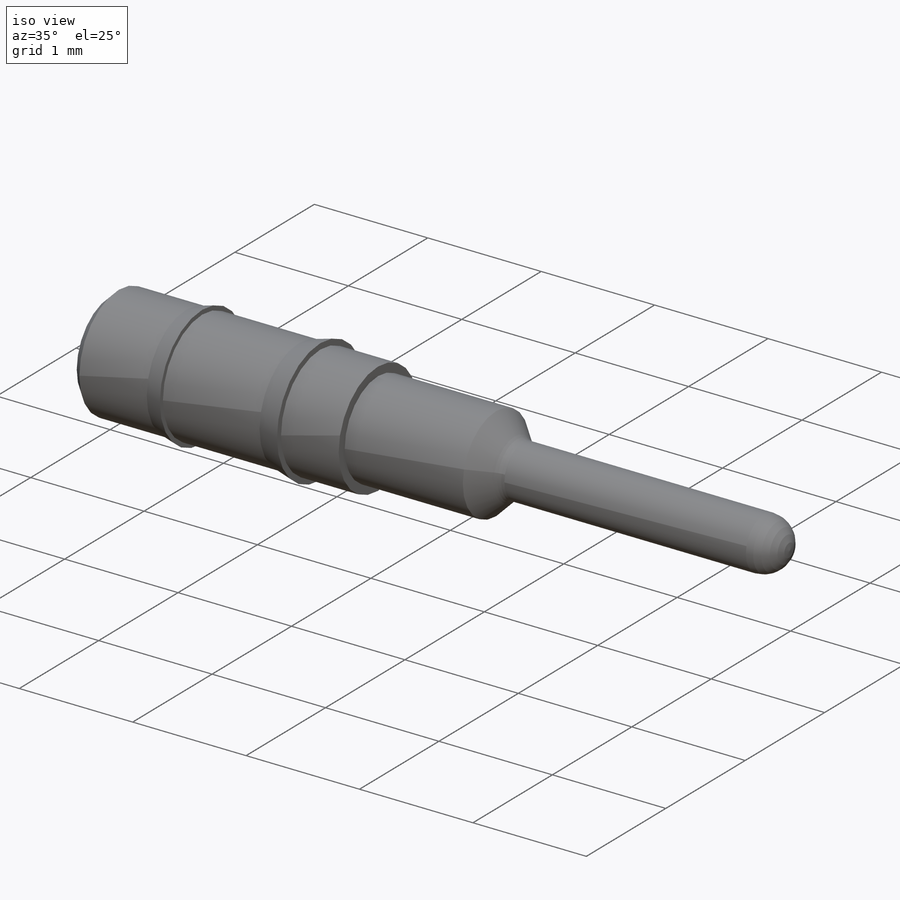
[diagram: iso view]
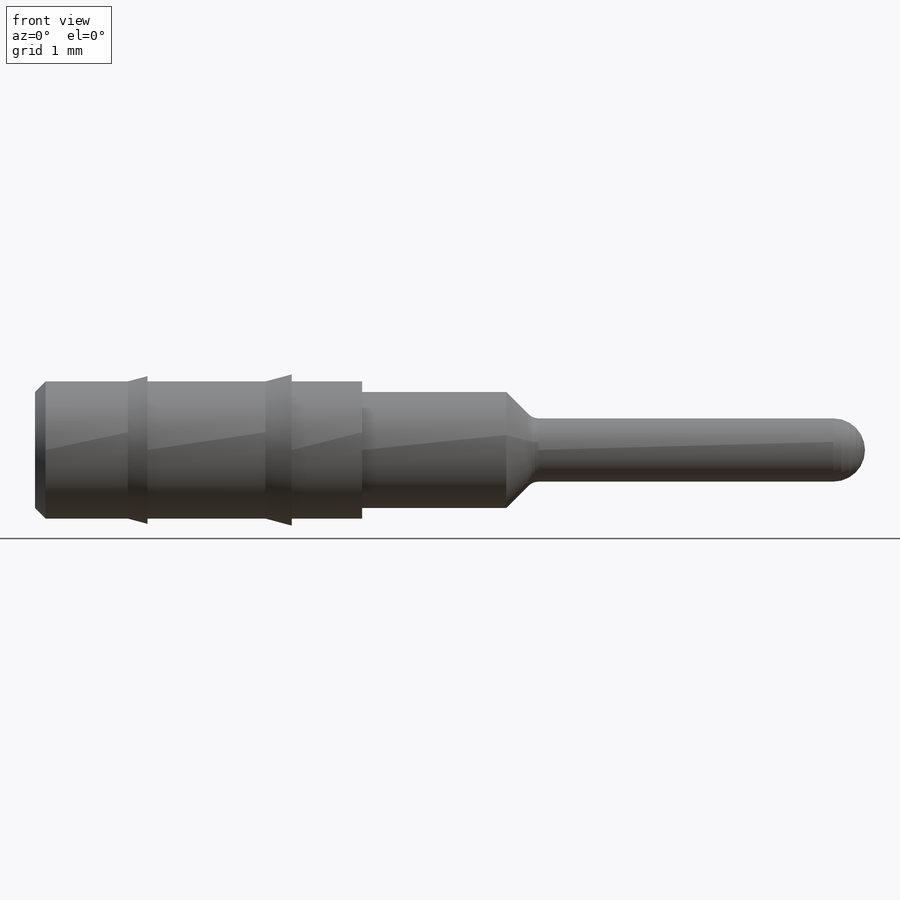
[diagram: front view]
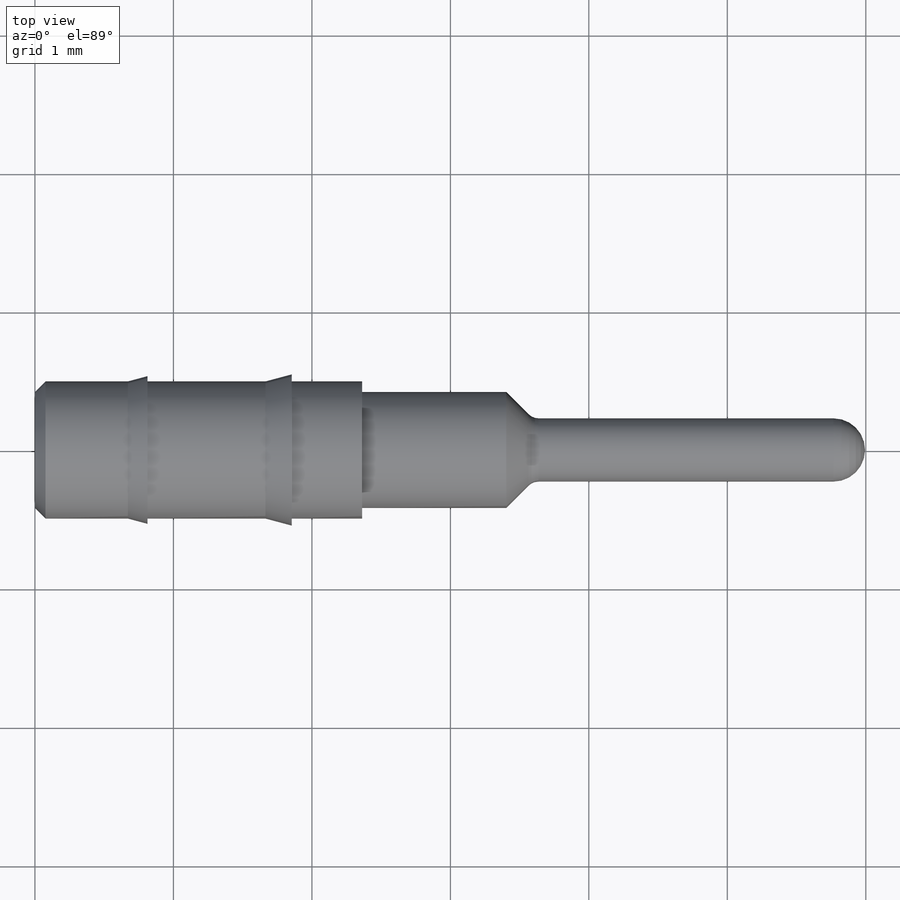
[diagram: top view]
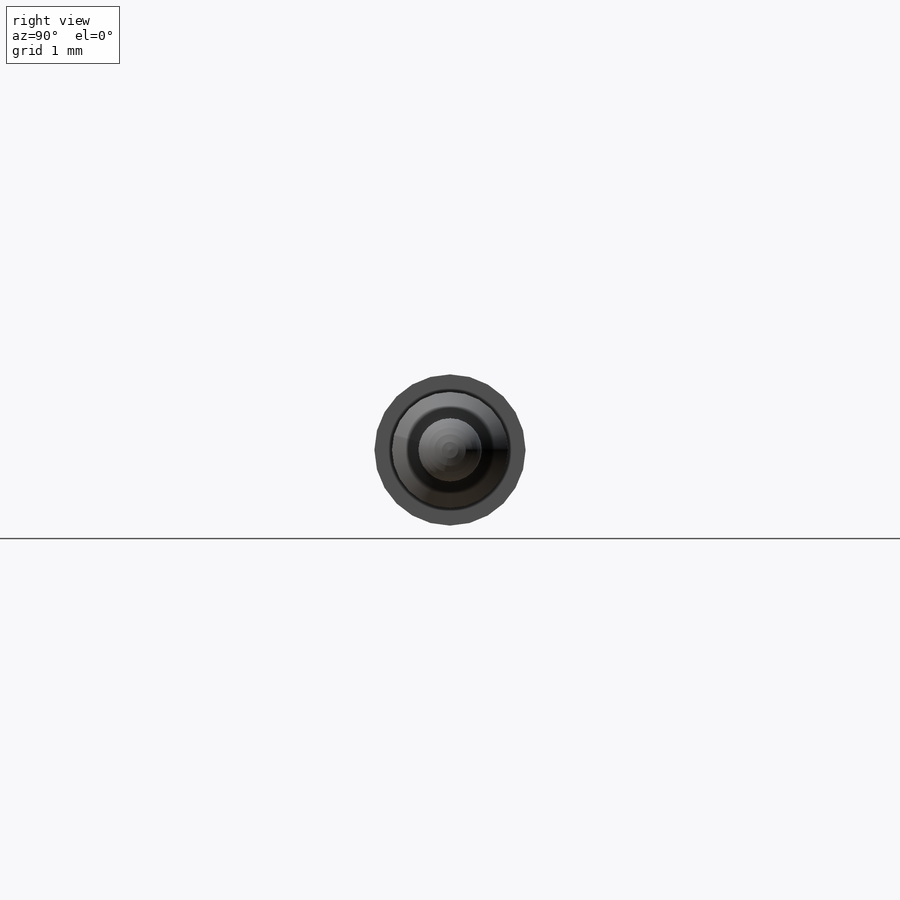
[diagram: right view]
SOLIDWORKS PART (.sldprt)
format: sldprt  version: not decoded by parser v0  size: 272,896 bytes
history: native  units: mm
features: sketch x5, hole x2, material x1, revolve x1 (+13 scaffold rows collapsed)
feature tree (22):
  scaffold x13  (default folders/planes/origin — collapsed)
  material  "Brass Alloy 385"
  sketch  "Sketch1"  dims[c1.D14=0.1016mm c1.D15=0.2286mm c1.D1=5.9944mm c1.D2=3.4036mm c1.D3=0.8128mm c1.D4=1.8542mm c1.D5=0.2286mm c1.D6=0.4953mm c1.D7=0.5334mm c1.D8=0.4191mm c1.D9=135.0deg c1.D10=15.0deg c1.D11=135.0deg c1.D12=0.0762mm c1.D13=2.3622mm c2.D9=~0.227324mm c3.D9=45.0deg c3.D11=0.0762mm c4.D11=45.0deg c4.D12=~0.594409mm c5.D11=0.0762mm c5.D12=~0.107763mm c6.D12=45.0deg c6.D16=0.0508mm c7.D16=15.0deg c8.D16=0.5461mm c8.ALength=2.5908mm]
  revolve  "RevolutionAngle1"  Angle=360deg
  hole  "Hole1"  Diameter=0.7874mm Depth=2.1082mm
  sketch  "Sketch3"
  sketch  "Sketch2"  dims[c1.D1=~97.659253deg c1.D2=~82.982399deg c1.Diameter=0.7874mm c2.D2=100.0mm c2.D3=~82.982399deg c2.D4=90.0deg c3.D3=~97.716715deg c3.Depth=2.1082mm c3.Drill Angle=118.0deg]
  hole  "Hole2"  Diameter=0.5588mm Depth=3.048mm
  sketch  "Sketch5"
  sketch  "Sketch4"  dims[c1.D1=~97.659253deg c1.D2=~82.982399deg c1.Diameter=0.5588mm c2.D2=100.0mm c2.D3=~82.982399deg c2.D4=90.0deg c3.D3=~97.716715deg c3.Depth=3.048mm c3.Drill Angle=118.0deg]
decode coverage: 6 of 8 modeling features carry decoded parameters
note: ~ marks probable driven/reference dimensions
note: suppression state not decoded; provenance and decode notes live in map.json
